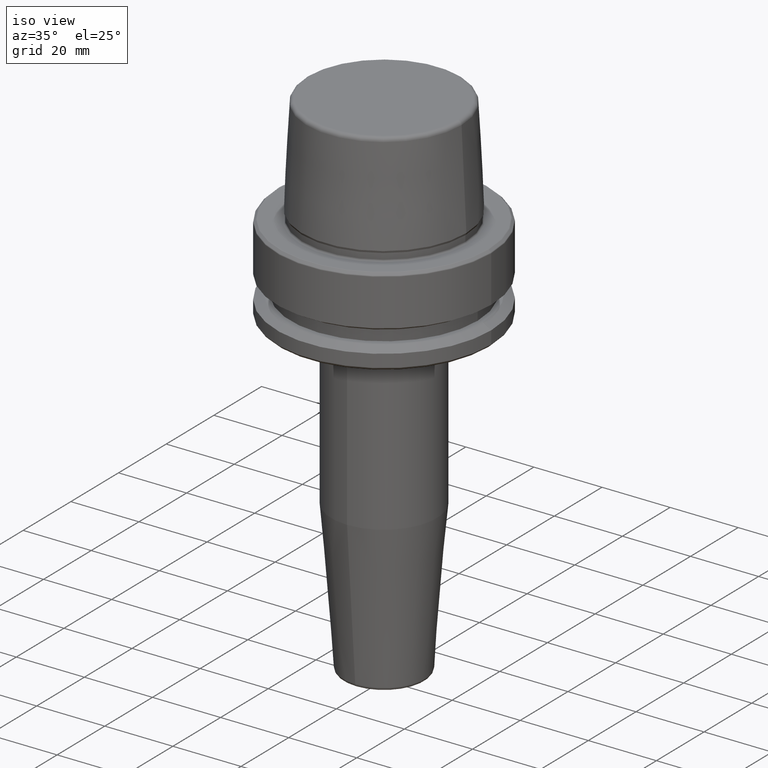
[diagram: clean part render]
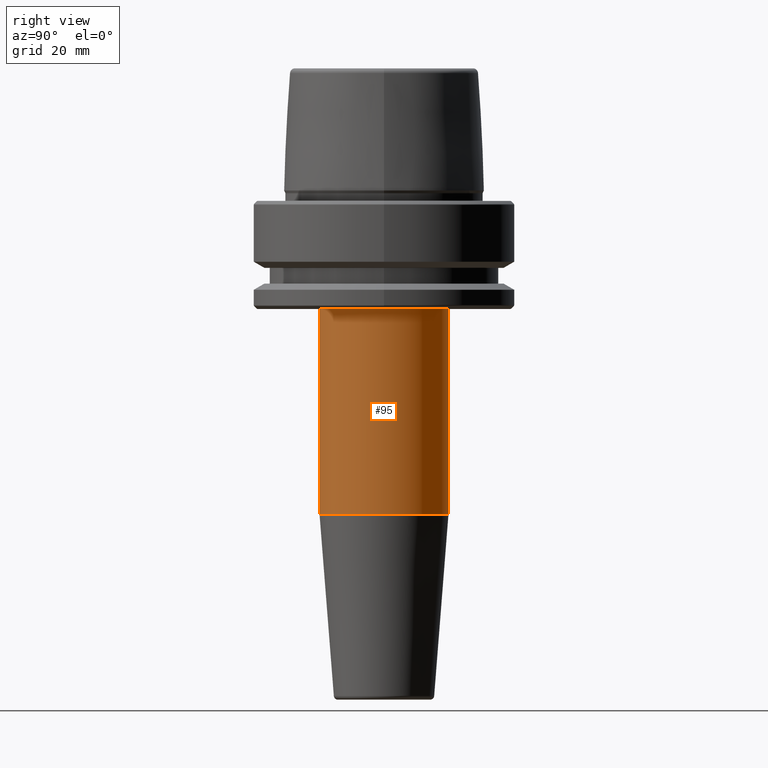
[diagram: tour spotlight — one face highlighted and labeled with its STEP entity id]
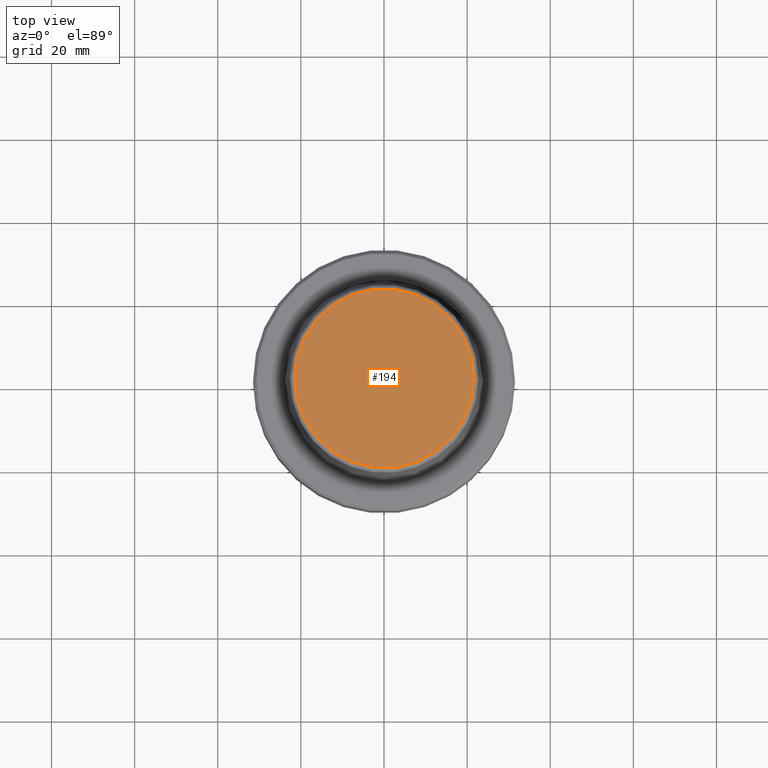
[diagram: tour spotlight — one face highlighted and labeled with its STEP entity id]
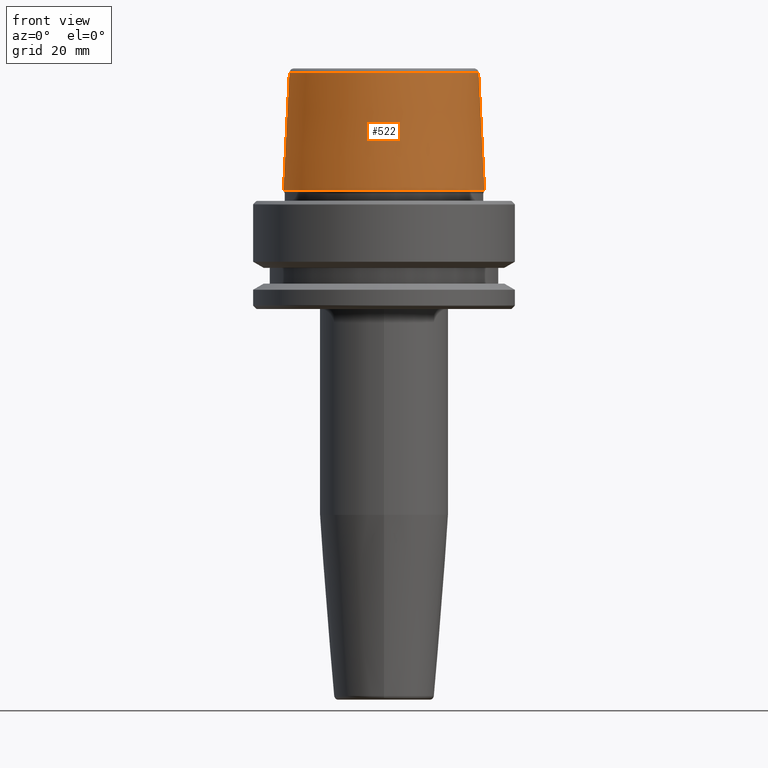
[diagram: tour spotlight — one face highlighted and labeled with its STEP entity id]
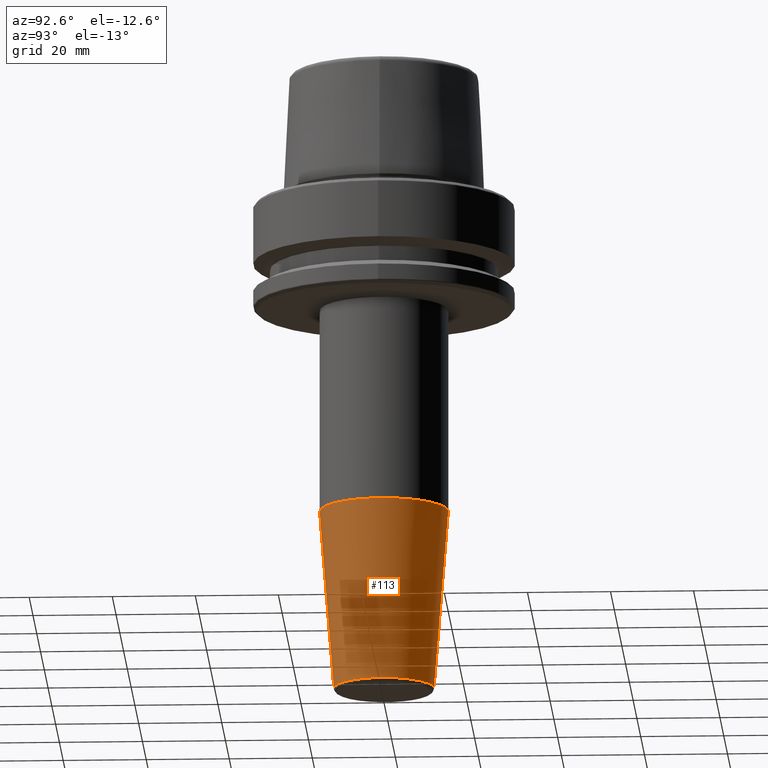
[diagram: tour spotlight — one face highlighted and labeled with its STEP entity id]
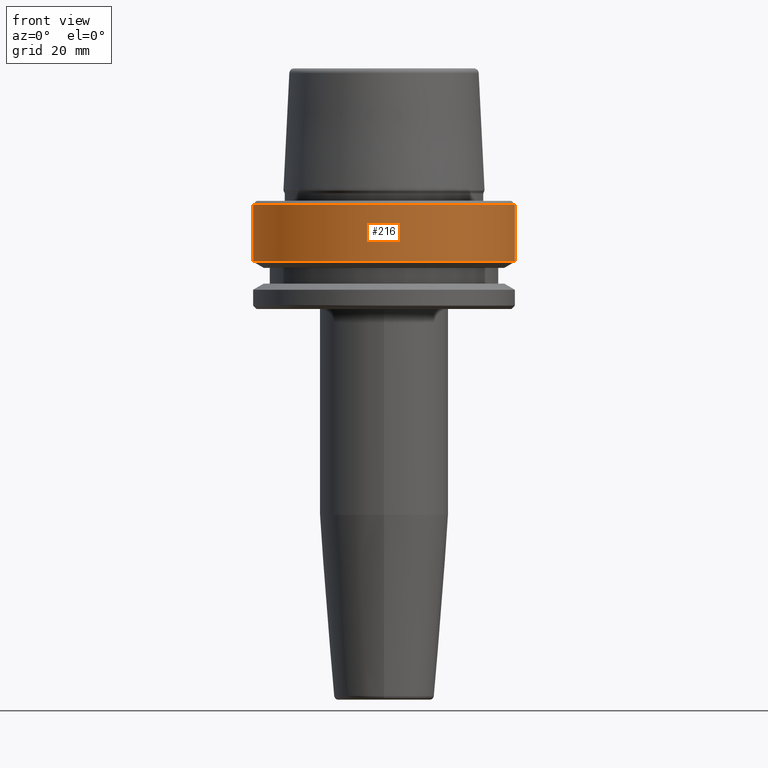
[diagram: tour spotlight — one face highlighted and labeled with its STEP entity id]
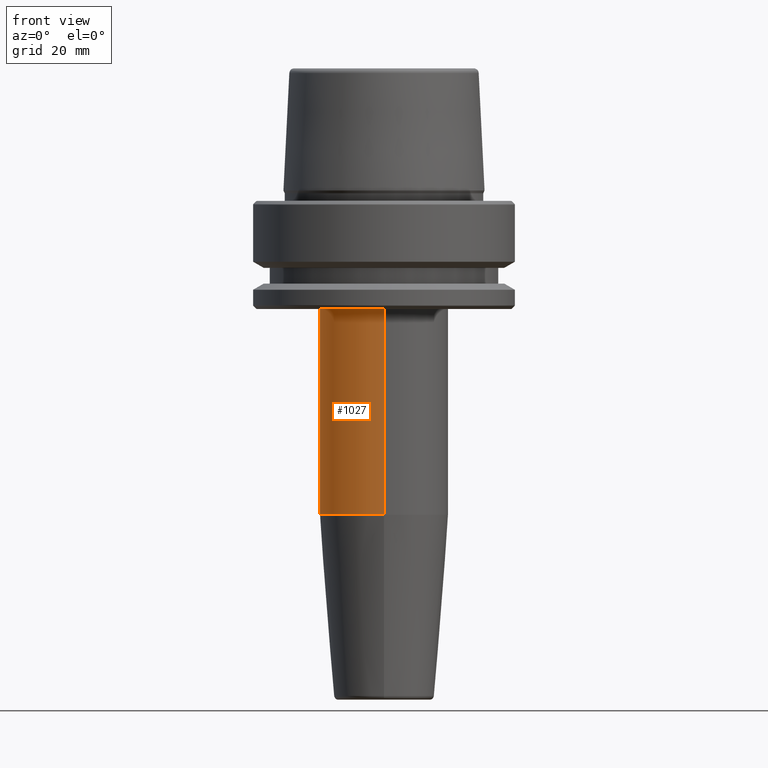
[diagram: tour spotlight — one face highlighted and labeled with its STEP entity id]
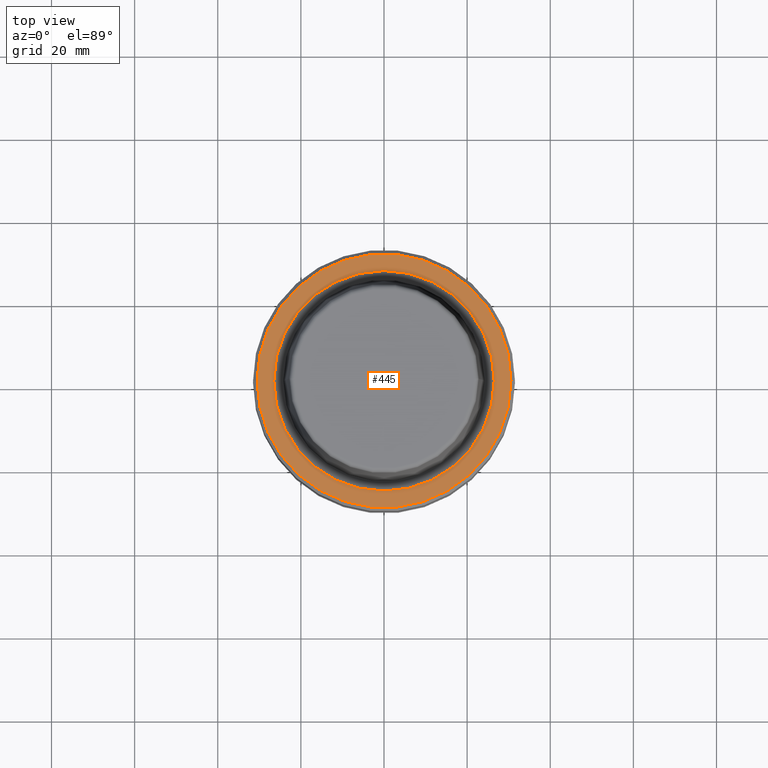
[diagram: tour spotlight — one face highlighted and labeled with its STEP entity id]
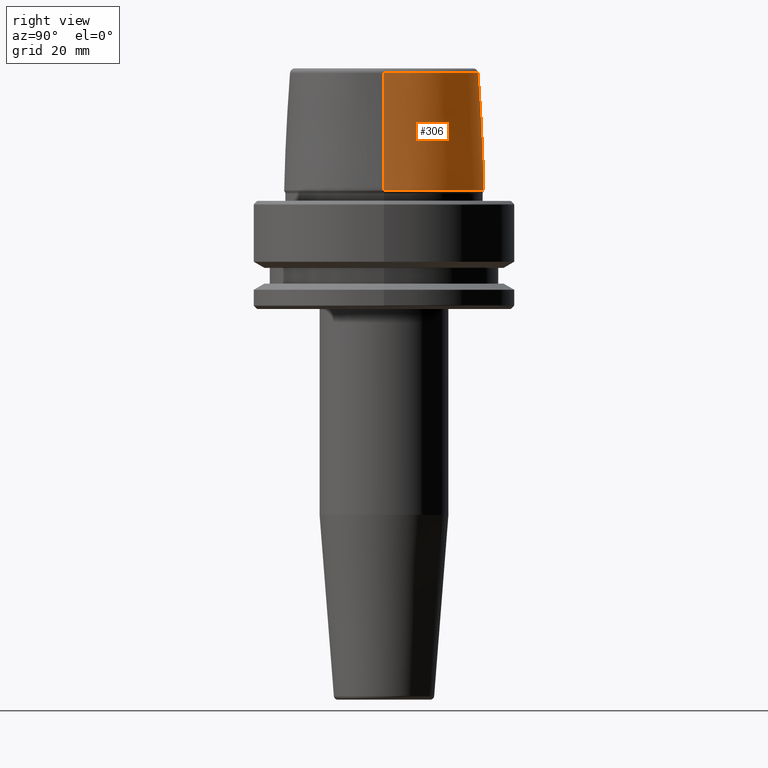
[diagram: tour spotlight — one face highlighted and labeled with its STEP entity id]
A machine part: a face-by-face anatomy tour. The part has 46 B-rep faces; the first image is the clean iso view, then the 8 largest visible faces are spotlighted one at a time (largest first), each with its STEP entity span.

Face 1 — right view, entity #95. In plain terms, the highlighted cylindrical surface (partial cylindrical patch) has radius 15.5 mm, axis along (-0, 0, -1).
Definition (entity closure, byte-faithful):
#21 = CARTESIAN_POINT ( 'NONE',  ( 1.898202538678396800E-015, 15.49999999999999600, -75.52828342338449400 ) ) ;
#33 = CARTESIAN_POINT ( 'NONE',  ( 0.0000000000000000000, 3.673940397442060800E-015, -120.0000000000000000 ) ) ;
#55 = CARTESIAN_POINT ( 'NONE',  ( 0.0000000000000000000, 15.49999999999999600, -120.0000000000000000 ) ) ;
#66 = ORIENTED_EDGE ( 'NONE', *, *, #854, .T. ) ;
#95 = ADVANCED_FACE ( 'NONE', ( #1067 ), #132, .T. ) ;
#112 = CIRCLE ( 'NONE', #831, 15.49999999999999500 ) ;
#117 = ORIENTED_EDGE ( 'NONE', *, *, #929, .F. ) ;
#126 = LINE ( 'NONE', #55, #241 ) ;
#132 = CYLINDRICAL_SURFACE ( 'NONE', #569, 15.49999999999999300 ) ;
#215 = VERTEX_POINT ( 'NONE', #21 ) ;
#241 = VECTOR ( 'NONE', #1012, 1000.000000000000000 ) ;
#279 = DIRECTION ( 'NONE',  ( 0.0000000000000000000, 1.000000000000000000, 0.0000000000000000000 ) ) ;
#330 = EDGE_LOOP ( 'NONE', ( #66, #1198, #924, #117 ) ) ;
#353 = DIRECTION ( 'NONE',  ( -0.0000000000000000000, 3.908447231321341700E-017, -1.000000000000000000 ) ) ;
#373 = CIRCLE ( 'NONE', #895, 15.49999999999999300 ) ;
#391 = CARTESIAN_POINT ( 'NONE',  ( 1.898202538678396800E-015, -15.49999999999999300, -26.00000000000001100 ) ) ;
#452 = VERTEX_POINT ( 'NONE', #885 ) ;
#569 = AXIS2_PLACEMENT_3D ( 'NONE', #33, #822, #279 ) ;
#621 = VERTEX_POINT ( 'NONE', #977 ) ;
#676 = LINE ( 'NONE', #891, #1137 ) ;
#707 = EDGE_CURVE ( 'NONE', #215, #621, #112, .T. ) ;
#711 = DIRECTION ( 'NONE',  ( -0.0000000000000000000, 3.908447231321341700E-017, -1.000000000000000000 ) ) ;
#726 = EDGE_CURVE ( 'NONE', #810, #621, #676, .T. ) ;
#809 = CARTESIAN_POINT ( 'NONE',  ( 0.0000000000000000000, 0.0000000000000000000, -26.00000000000001100 ) ) ;
#810 = VERTEX_POINT ( 'NONE', #391 ) ;
#822 = DIRECTION ( 'NONE',  ( -0.0000000000000000000, 3.908447231321341700E-017, -1.000000000000000000 ) ) ;
#831 = AXIS2_PLACEMENT_3D ( 'NONE', #1070, #353, #1136 ) ;
#854 = EDGE_CURVE ( 'NONE', #452, #810, #373, .T. ) ;
#885 = CARTESIAN_POINT ( 'NONE',  ( 0.0000000000000000000, 15.49999999999999300, -26.00000000000001100 ) ) ;
#891 = CARTESIAN_POINT ( 'NONE',  ( 1.898202538678396800E-015, -15.49999999999998900, -120.0000000000000000 ) ) ;
#895 = AXIS2_PLACEMENT_3D ( 'NONE', #809, #1189, #999 ) ;
#924 = ORIENTED_EDGE ( 'NONE', *, *, #707, .F. ) ;
#929 = EDGE_CURVE ( 'NONE', #452, #215, #126, .T. ) ;
#977 = CARTESIAN_POINT ( 'NONE',  ( 0.0000000000000000000, -15.49999999999999300, -75.52828342338449400 ) ) ;
#999 = DIRECTION ( 'NONE',  ( 1.000000000000000000, 0.0000000000000000000, 0.0000000000000000000 ) ) ;
#1012 = DIRECTION ( 'NONE',  ( -0.0000000000000000000, 3.908447231321341700E-017, -1.000000000000000000 ) ) ;
#1067 = FACE_OUTER_BOUND ( 'NONE', #330, .T. ) ;
#1070 = CARTESIAN_POINT ( 'NONE',  ( 0.0000000000000000000, 1.935786822182258300E-015, -75.52828342338449400 ) ) ;
#1136 = DIRECTION ( 'NONE',  ( 0.0000000000000000000, 1.000000000000000000, 0.0000000000000000000 ) ) ;
#1137 = VECTOR ( 'NONE', #711, 1000.000000000000000 ) ;
#1189 = DIRECTION ( 'NONE',  ( 0.0000000000000000000, 0.0000000000000000000, -1.000000000000000000 ) ) ;
#1198 = ORIENTED_EDGE ( 'NONE', *, *, #726, .T. ) ;

Face 2 — top view, entity #194. In plain terms, the highlighted planar face has unit normal (0, 0, -1).
Definition (entity closure, byte-faithful):
#68 = CARTESIAN_POINT ( 'NONE',  ( -21.58108272732117100, 2.716307157494421400E-015, 31.89999999999999900 ) ) ;
#140 = AXIS2_PLACEMENT_3D ( 'NONE', #774, #305, #467 ) ;
#171 = ORIENTED_EDGE ( 'NONE', *, *, #791, .T. ) ;
#188 = PLANE ( 'NONE',  #326 ) ;
#194 = ADVANCED_FACE ( 'NONE', ( #1080 ), #188, .F. ) ;
#219 = AXIS2_PLACEMENT_3D ( 'NONE', #1088, #821, #756 ) ;
#305 = DIRECTION ( 'NONE',  ( -0.0000000000000000000, -0.0000000000000000000, 1.000000000000000000 ) ) ;
#314 = VERTEX_POINT ( 'NONE', #68 ) ;
#326 = AXIS2_PLACEMENT_3D ( 'NONE', #626, #958, #788 ) ;
#467 = DIRECTION ( 'NONE',  ( 1.000000000000000000, 0.0000000000000000000, 0.0000000000000000000 ) ) ;
#607 = EDGE_CURVE ( 'NONE', #314, #913, #1202, .T. ) ;
#626 = CARTESIAN_POINT ( 'NONE',  ( 0.0000000000000000000, 0.0000000000000000000, 31.89999999999999900 ) ) ;
#756 = DIRECTION ( 'NONE',  ( 1.000000000000000000, 0.0000000000000000000, 0.0000000000000000000 ) ) ;
#758 = ORIENTED_EDGE ( 'NONE', *, *, #607, .T. ) ;
#774 = CARTESIAN_POINT ( 'NONE',  ( 0.0000000000000000000, 0.0000000000000000000, 31.89999999999999900 ) ) ;
#788 = DIRECTION ( 'NONE',  ( -1.000000000000000000, 0.0000000000000000000, -0.0000000000000000000 ) ) ;
#791 = EDGE_CURVE ( 'NONE', #913, #314, #953, .T. ) ;
#821 = DIRECTION ( 'NONE',  ( -0.0000000000000000000, -0.0000000000000000000, 1.000000000000000000 ) ) ;
#913 = VERTEX_POINT ( 'NONE', #1047 ) ;
#953 = CIRCLE ( 'NONE', #219, 21.58108272732117100 ) ;
#958 = DIRECTION ( 'NONE',  ( 0.0000000000000000000, 0.0000000000000000000, -1.000000000000000000 ) ) ;
#1032 = EDGE_LOOP ( 'NONE', ( #171, #758 ) ) ;
#1047 = CARTESIAN_POINT ( 'NONE',  ( 21.58108272732117100, 0.0000000000000000000, 31.89999999999999900 ) ) ;
#1080 = FACE_OUTER_BOUND ( 'NONE', #1032, .T. ) ;
#1088 = CARTESIAN_POINT ( 'NONE',  ( 0.0000000000000000000, 0.0000000000000000000, 31.89999999999999900 ) ) ;
#1202 = CIRCLE ( 'NONE', #140, 21.58108272732117100 ) ;

Face 3 — front view, entity #522. In plain terms, the highlighted conical surface has half-angle 2.868 deg.
Definition (entity closure, byte-faithful):
#10 = CARTESIAN_POINT ( 'NONE',  ( -24.19537568275369200, 0.0000000000000000000, 2.500000000000002200 ) ) ;
#46 = VECTOR ( 'NONE', #762, 1000.000000000000200 ) ;
#62 = DIRECTION ( 'NONE',  ( 1.000000000000000000, 0.0000000000000000000, 0.0000000000000000000 ) ) ;
#63 = VERTEX_POINT ( 'NONE', #871 ) ;
#64 = CIRCLE ( 'NONE', #1237, 22.77957961851797100 ) ;
#84 = CARTESIAN_POINT ( 'NONE',  ( 24.19537568275369200, 0.0000000000000000000, 2.500000000000002200 ) ) ;
#149 = LINE ( 'NONE', #10, #927 ) ;
#177 = CONICAL_SURFACE ( 'NONE', #214, 24.19537568275369200, 0.05005701257455997400 ) ;
#198 = ORIENTED_EDGE ( 'NONE', *, *, #263, .F. ) ;
#214 = AXIS2_PLACEMENT_3D ( 'NONE', #1075, #1131, #785 ) ;
#238 = EDGE_CURVE ( 'NONE', #370, #63, #149, .T. ) ;
#263 = EDGE_CURVE ( 'NONE', #370, #974, #64, .T. ) ;
#267 = CARTESIAN_POINT ( 'NONE',  ( 22.77957961851797100, 2.876386432489616700E-015, 30.76004333261571900 ) ) ;
#295 = CARTESIAN_POINT ( 'NONE',  ( -22.77957961851797100, 0.0000000000000000000, 30.76004333261571900 ) ) ;
#362 = DIRECTION ( 'NONE',  ( -0.05003611051310804400, 0.0000000000000000000, -0.9987474093306675200 ) ) ;
#370 = VERTEX_POINT ( 'NONE', #295 ) ;
#380 = LINE ( 'NONE', #750, #46 ) ;
#457 = CARTESIAN_POINT ( 'NONE',  ( 0.0000000000000000000, 0.0000000000000000000, 2.500000000000002200 ) ) ;
#483 = VERTEX_POINT ( 'NONE', #84 ) ;
#486 = DIRECTION ( 'NONE',  ( -0.0000000000000000000, -0.0000000000000000000, 1.000000000000000000 ) ) ;
#522 = ADVANCED_FACE ( 'NONE', ( #1014 ), #177, .T. ) ;
#580 = AXIS2_PLACEMENT_3D ( 'NONE', #457, #1086, #62 ) ;
#609 = ORIENTED_EDGE ( 'NONE', *, *, #238, .T. ) ;
#735 = ORIENTED_EDGE ( 'NONE', *, *, #827, .T. ) ;
#750 = CARTESIAN_POINT ( 'NONE',  ( 24.19537568275369200, 2.963078938405201500E-015, 2.500000000000002200 ) ) ;
#762 = DIRECTION ( 'NONE',  ( 0.05003611051310804400, 6.127656258166099700E-018, -0.9987474093306675200 ) ) ;
#785 = DIRECTION ( 'NONE',  ( -1.000000000000000000, 0.0000000000000000000, 0.0000000000000000000 ) ) ;
#827 = EDGE_CURVE ( 'NONE', #63, #483, #869, .T. ) ;
#863 = EDGE_LOOP ( 'NONE', ( #961, #198, #609, #735 ) ) ;
#869 = CIRCLE ( 'NONE', #580, 24.19537568275369200 ) ;
#871 = CARTESIAN_POINT ( 'NONE',  ( -24.19537568275369200, 2.963078938405201500E-015, 2.500000000000002200 ) ) ;
#908 = EDGE_CURVE ( 'NONE', #974, #483, #380, .T. ) ;
#927 = VECTOR ( 'NONE', #362, 1000.000000000000200 ) ;
#961 = ORIENTED_EDGE ( 'NONE', *, *, #908, .F. ) ;
#974 = VERTEX_POINT ( 'NONE', #267 ) ;
#1014 = FACE_OUTER_BOUND ( 'NONE', #863, .T. ) ;
#1075 = CARTESIAN_POINT ( 'NONE',  ( 0.0000000000000000000, 0.0000000000000000000, 2.500000000000002200 ) ) ;
#1086 = DIRECTION ( 'NONE',  ( -0.0000000000000000000, -0.0000000000000000000, 1.000000000000000000 ) ) ;
#1131 = DIRECTION ( 'NONE',  ( 0.0000000000000000000, 0.0000000000000000000, -1.000000000000000000 ) ) ;
#1159 = DIRECTION ( 'NONE',  ( 1.000000000000000000, 0.0000000000000000000, 0.0000000000000000000 ) ) ;
#1175 = CARTESIAN_POINT ( 'NONE',  ( 0.0000000000000000000, 0.0000000000000000000, 30.76004333261571900 ) ) ;
#1237 = AXIS2_PLACEMENT_3D ( 'NONE', #1175, #486, #1159 ) ;

Face 4 — auxiliary view, entity #113. In plain terms, the highlighted conical surface has half-angle 4.5 deg.
Definition (entity closure, byte-faithful):
#5 = VECTOR ( 'NONE', #713, 1000.000000000000000 ) ;
#21 = CARTESIAN_POINT ( 'NONE',  ( 1.898202538678396800E-015, 15.49999999999999600, -75.52828342338449400 ) ) ;
#109 = EDGE_CURVE ( 'NONE', #547, #215, #205, .T. ) ;
#112 = CIRCLE ( 'NONE', #831, 15.49999999999999500 ) ;
#113 = ADVANCED_FACE ( 'NONE', ( #369 ), #647, .T. ) ;
#178 = DIRECTION ( 'NONE',  ( 0.0000000000000000000, 1.000000000000000000, 0.0000000000000000000 ) ) ;
#205 = LINE ( 'NONE', #865, #1118 ) ;
#215 = VERTEX_POINT ( 'NONE', #21 ) ;
#353 = DIRECTION ( 'NONE',  ( -0.0000000000000000000, 3.908447231321341700E-017, -1.000000000000000000 ) ) ;
#369 = FACE_OUTER_BOUND ( 'NONE', #1115, .T. ) ;
#420 = CARTESIAN_POINT ( 'NONE',  ( 0.0000000000000000000, -15.49999999999999300, -75.52828342338449400 ) ) ;
#430 = CARTESIAN_POINT ( 'NONE',  ( 0.0000000000000000000, 1.935786822182258300E-015, -75.52828342338449400 ) ) ;
#456 = ORIENTED_EDGE ( 'NONE', *, *, #652, .F. ) ;
#484 = CARTESIAN_POINT ( 'NONE',  ( 0.0000000000000000000, 3.637922457483541700E-015, -119.0784590957278200 ) ) ;
#495 = ORIENTED_EDGE ( 'NONE', *, *, #109, .T. ) ;
#514 = DIRECTION ( 'NONE',  ( 9.608468044709221400E-018, 0.07845909572783765800, 0.9969173337331286300 ) ) ;
#527 = AXIS2_PLACEMENT_3D ( 'NONE', #484, #1253, #178 ) ;
#547 = VERTEX_POINT ( 'NONE', #1156 ) ;
#621 = VERTEX_POINT ( 'NONE', #977 ) ;
#647 = CONICAL_SURFACE ( 'NONE', #741, 15.49999999999999500, 0.07853981633973757000 ) ;
#652 = EDGE_CURVE ( 'NONE', #547, #798, #852, .T. ) ;
#656 = DIRECTION ( 'NONE',  ( 0.0000000000000000000, -1.000000000000000000, 0.0000000000000000000 ) ) ;
#707 = EDGE_CURVE ( 'NONE', #215, #621, #112, .T. ) ;
#713 = DIRECTION ( 'NONE',  ( 0.0000000000000000000, -0.07845909572783772700, 0.9969173337331285200 ) ) ;
#741 = AXIS2_PLACEMENT_3D ( 'NONE', #430, #1106, #656 ) ;
#798 = VERTEX_POINT ( 'NONE', #1120 ) ;
#811 = ORIENTED_EDGE ( 'NONE', *, *, #707, .T. ) ;
#831 = AXIS2_PLACEMENT_3D ( 'NONE', #1070, #353, #1136 ) ;
#832 = EDGE_CURVE ( 'NONE', #798, #621, #907, .T. ) ;
#852 = CIRCLE ( 'NONE', #527, 12.07252684207491800 ) ;
#865 = CARTESIAN_POINT ( 'NONE',  ( 1.898202538678396800E-015, 15.49999999999999600, -75.52828342338449400 ) ) ;
#907 = LINE ( 'NONE', #420, #5 ) ;
#977 = CARTESIAN_POINT ( 'NONE',  ( 0.0000000000000000000, -15.49999999999999300, -75.52828342338449400 ) ) ;
#1070 = CARTESIAN_POINT ( 'NONE',  ( 0.0000000000000000000, 1.935786822182258300E-015, -75.52828342338449400 ) ) ;
#1106 = DIRECTION ( 'NONE',  ( 0.0000000000000000000, -3.908447231321341700E-017, 1.000000000000000000 ) ) ;
#1109 = ORIENTED_EDGE ( 'NONE', *, *, #832, .F. ) ;
#1115 = EDGE_LOOP ( 'NONE', ( #456, #495, #811, #1109 ) ) ;
#1118 = VECTOR ( 'NONE', #514, 999.9999999999998900 ) ;
#1120 = CARTESIAN_POINT ( 'NONE',  ( 1.478458135476755100E-015, -12.07252684207491300, -119.0784590957278200 ) ) ;
#1136 = DIRECTION ( 'NONE',  ( 0.0000000000000000000, 1.000000000000000000, 0.0000000000000000000 ) ) ;
#1156 = CARTESIAN_POINT ( 'NONE',  ( 0.0000000000000000000, 12.07252684207492000, -119.0784590957278200 ) ) ;
#1253 = DIRECTION ( 'NONE',  ( -0.0000000000000000000, 3.908447231321341700E-017, -1.000000000000000000 ) ) ;

Face 5 — front view, entity #216. In plain terms, the highlighted cylindrical surface (partial cylindrical patch) has radius 31.5 mm, axis along (-0, -0, 1).
Definition (entity closure, byte-faithful):
#49 = VERTEX_POINT ( 'NONE', #179 ) ;
#74 = AXIS2_PLACEMENT_3D ( 'NONE', #412, #705, #343 ) ;
#104 = CYLINDRICAL_SURFACE ( 'NONE', #1211, 31.50000000000000000 ) ;
#135 = VECTOR ( 'NONE', #1168, 1000.000000000000000 ) ;
#173 = EDGE_CURVE ( 'NONE', #1208, #49, #1256, .T. ) ;
#179 = CARTESIAN_POINT ( 'NONE',  ( 31.50000000000000000, 0.0000000000000000000, -0.9656854249492363700 ) ) ;
#197 = AXIS2_PLACEMENT_3D ( 'NONE', #731, #902, #934 ) ;
#216 = ADVANCED_FACE ( 'NONE', ( #833 ), #104, .T. ) ;
#243 = CARTESIAN_POINT ( 'NONE',  ( -31.50000000000000000, 3.857637417314162700E-015, 78.96908074195309300 ) ) ;
#246 = CARTESIAN_POINT ( 'NONE',  ( 0.0000000000000000000, 0.0000000000000000000, 78.96908074195309300 ) ) ;
#343 = DIRECTION ( 'NONE',  ( 1.000000000000000000, 0.0000000000000000000, 0.0000000000000000000 ) ) ;
#344 = EDGE_CURVE ( 'NONE', #696, #1208, #561, .T. ) ;
#348 = ORIENTED_EDGE ( 'NONE', *, *, #344, .T. ) ;
#403 = ORIENTED_EDGE ( 'NONE', *, *, #1200, .F. ) ;
#411 = DIRECTION ( 'NONE',  ( -0.0000000000000000000, -0.0000000000000000000, 1.000000000000000000 ) ) ;
#412 = CARTESIAN_POINT ( 'NONE',  ( 0.0000000000000000000, 0.0000000000000000000, -14.62250092524070100 ) ) ;
#528 = DIRECTION ( 'NONE',  ( 1.000000000000000000, 0.0000000000000000000, 0.0000000000000000000 ) ) ;
#552 = CIRCLE ( 'NONE', #197, 31.50000000000000000 ) ;
#561 = CIRCLE ( 'NONE', #74, 31.50000000000000000 ) ;
#584 = CARTESIAN_POINT ( 'NONE',  ( -31.50000000000000000, 3.857637417314162700E-015, -14.62250092524070100 ) ) ;
#587 = LINE ( 'NONE', #243, #837 ) ;
#623 = DIRECTION ( 'NONE',  ( -0.0000000000000000000, -0.0000000000000000000, 1.000000000000000000 ) ) ;
#696 = VERTEX_POINT ( 'NONE', #584 ) ;
#705 = DIRECTION ( 'NONE',  ( -0.0000000000000000000, -0.0000000000000000000, 1.000000000000000000 ) ) ;
#731 = CARTESIAN_POINT ( 'NONE',  ( 0.0000000000000000000, 0.0000000000000000000, -0.9656854249492363700 ) ) ;
#742 = VERTEX_POINT ( 'NONE', #859 ) ;
#833 = FACE_OUTER_BOUND ( 'NONE', #1119, .T. ) ;
#837 = VECTOR ( 'NONE', #411, 1000.000000000000000 ) ;
#859 = CARTESIAN_POINT ( 'NONE',  ( -31.50000000000000000, 3.857637417314162700E-015, -0.9656854249492363700 ) ) ;
#902 = DIRECTION ( 'NONE',  ( -0.0000000000000000000, -0.0000000000000000000, 1.000000000000000000 ) ) ;
#934 = DIRECTION ( 'NONE',  ( 1.000000000000000000, 0.0000000000000000000, 0.0000000000000000000 ) ) ;
#1023 = ORIENTED_EDGE ( 'NONE', *, *, #173, .T. ) ;
#1052 = CARTESIAN_POINT ( 'NONE',  ( 31.50000000000000000, 0.0000000000000000000, -14.62250092524070100 ) ) ;
#1119 = EDGE_LOOP ( 'NONE', ( #1210, #348, #1023, #403 ) ) ;
#1138 = EDGE_CURVE ( 'NONE', #696, #742, #587, .T. ) ;
#1168 = DIRECTION ( 'NONE',  ( -0.0000000000000000000, -0.0000000000000000000, 1.000000000000000000 ) ) ;
#1200 = EDGE_CURVE ( 'NONE', #742, #49, #552, .T. ) ;
#1208 = VERTEX_POINT ( 'NONE', #1052 ) ;
#1210 = ORIENTED_EDGE ( 'NONE', *, *, #1138, .F. ) ;
#1211 = AXIS2_PLACEMENT_3D ( 'NONE', #246, #623, #528 ) ;
#1213 = CARTESIAN_POINT ( 'NONE',  ( 31.50000000000000000, 0.0000000000000000000, 78.96908074195309300 ) ) ;
#1256 = LINE ( 'NONE', #1213, #135 ) ;

Face 6 — front view, entity #1027. In plain terms, the highlighted cylindrical surface (partial cylindrical patch) has radius 15.5 mm, axis along (-0, 0, -1).
Definition (entity closure, byte-faithful):
#21 = CARTESIAN_POINT ( 'NONE',  ( 1.898202538678396800E-015, 15.49999999999999600, -75.52828342338449400 ) ) ;
#55 = CARTESIAN_POINT ( 'NONE',  ( 0.0000000000000000000, 15.49999999999999600, -120.0000000000000000 ) ) ;
#81 = EDGE_CURVE ( 'NONE', #810, #452, #329, .T. ) ;
#121 = AXIS2_PLACEMENT_3D ( 'NONE', #935, #991, #806 ) ;
#126 = LINE ( 'NONE', #55, #241 ) ;
#215 = VERTEX_POINT ( 'NONE', #21 ) ;
#241 = VECTOR ( 'NONE', #1012, 1000.000000000000000 ) ;
#251 = DIRECTION ( 'NONE',  ( 1.000000000000000000, 0.0000000000000000000, 0.0000000000000000000 ) ) ;
#307 = CARTESIAN_POINT ( 'NONE',  ( 0.0000000000000000000, 3.673940397442060800E-015, -120.0000000000000000 ) ) ;
#329 = CIRCLE ( 'NONE', #770, 15.49999999999999300 ) ;
#334 = EDGE_CURVE ( 'NONE', #621, #215, #989, .T. ) ;
#386 = DIRECTION ( 'NONE',  ( 0.0000000000000000000, 0.0000000000000000000, -1.000000000000000000 ) ) ;
#391 = CARTESIAN_POINT ( 'NONE',  ( 1.898202538678396800E-015, -15.49999999999999300, -26.00000000000001100 ) ) ;
#452 = VERTEX_POINT ( 'NONE', #885 ) ;
#611 = ORIENTED_EDGE ( 'NONE', *, *, #334, .F. ) ;
#620 = CARTESIAN_POINT ( 'NONE',  ( 0.0000000000000000000, 0.0000000000000000000, -26.00000000000001100 ) ) ;
#621 = VERTEX_POINT ( 'NONE', #977 ) ;
#667 = EDGE_LOOP ( 'NONE', ( #777, #783, #765, #611 ) ) ;
#675 = FACE_OUTER_BOUND ( 'NONE', #667, .T. ) ;
#676 = LINE ( 'NONE', #891, #1137 ) ;
#704 = AXIS2_PLACEMENT_3D ( 'NONE', #307, #1229, #754 ) ;
#711 = DIRECTION ( 'NONE',  ( -0.0000000000000000000, 3.908447231321341700E-017, -1.000000000000000000 ) ) ;
#726 = EDGE_CURVE ( 'NONE', #810, #621, #676, .T. ) ;
#754 = DIRECTION ( 'NONE',  ( 0.0000000000000000000, 1.000000000000000000, 0.0000000000000000000 ) ) ;
#765 = ORIENTED_EDGE ( 'NONE', *, *, #929, .T. ) ;
#770 = AXIS2_PLACEMENT_3D ( 'NONE', #620, #386, #251 ) ;
#777 = ORIENTED_EDGE ( 'NONE', *, *, #726, .F. ) ;
#783 = ORIENTED_EDGE ( 'NONE', *, *, #81, .T. ) ;
#806 = DIRECTION ( 'NONE',  ( 0.0000000000000000000, 1.000000000000000000, 0.0000000000000000000 ) ) ;
#810 = VERTEX_POINT ( 'NONE', #391 ) ;
#885 = CARTESIAN_POINT ( 'NONE',  ( 0.0000000000000000000, 15.49999999999999300, -26.00000000000001100 ) ) ;
#891 = CARTESIAN_POINT ( 'NONE',  ( 1.898202538678396800E-015, -15.49999999999998900, -120.0000000000000000 ) ) ;
#929 = EDGE_CURVE ( 'NONE', #452, #215, #126, .T. ) ;
#935 = CARTESIAN_POINT ( 'NONE',  ( 0.0000000000000000000, 1.935786822182258300E-015, -75.52828342338449400 ) ) ;
#977 = CARTESIAN_POINT ( 'NONE',  ( 0.0000000000000000000, -15.49999999999999300, -75.52828342338449400 ) ) ;
#989 = CIRCLE ( 'NONE', #121, 15.49999999999999500 ) ;
#991 = DIRECTION ( 'NONE',  ( -0.0000000000000000000, 3.908447231321341700E-017, -1.000000000000000000 ) ) ;
#1012 = DIRECTION ( 'NONE',  ( -0.0000000000000000000, 3.908447231321341700E-017, -1.000000000000000000 ) ) ;
#1027 = ADVANCED_FACE ( 'NONE', ( #675 ), #1122, .T. ) ;
#1122 = CYLINDRICAL_SURFACE ( 'NONE', #704, 15.49999999999999300 ) ;
#1137 = VECTOR ( 'NONE', #711, 1000.000000000000000 ) ;
#1229 = DIRECTION ( 'NONE',  ( -0.0000000000000000000, 3.908447231321341700E-017, -1.000000000000000000 ) ) ;

Face 7 — top view, entity #445. In plain terms, the highlighted planar face has unit normal (0, 0, -1).
Definition (entity closure, byte-faithful):
#53 = CARTESIAN_POINT ( 'NONE',  ( -30.53431457505076100, 3.756694181974138600E-015, 0.0000000000000000000 ) ) ;
#94 = DIRECTION ( 'NONE',  ( -1.000000000000000000, 0.0000000000000000000, -0.0000000000000000000 ) ) ;
#137 = DIRECTION ( 'NONE',  ( 1.000000000000000000, 0.0000000000000000000, 0.0000000000000000000 ) ) ;
#163 = VERTEX_POINT ( 'NONE', #812 ) ;
#187 = AXIS2_PLACEMENT_3D ( 'NONE', #393, #200, #94 ) ;
#200 = DIRECTION ( 'NONE',  ( 0.0000000000000000000, 0.0000000000000000000, -1.000000000000000000 ) ) ;
#239 = DIRECTION ( 'NONE',  ( -0.0000000000000000000, -0.0000000000000000000, 1.000000000000000000 ) ) ;
#244 = ORIENTED_EDGE ( 'NONE', *, *, #633, .T. ) ;
#260 = DIRECTION ( 'NONE',  ( 1.000000000000000000, 0.0000000000000000000, 0.0000000000000000000 ) ) ;
#268 = AXIS2_PLACEMENT_3D ( 'NONE', #636, #239, #137 ) ;
#309 = CIRCLE ( 'NONE', #268, 26.52499999999999900 ) ;
#313 = EDGE_CURVE ( 'NONE', #163, #520, #764, .T. ) ;
#333 = EDGE_CURVE ( 'NONE', #520, #163, #309, .T. ) ;
#352 = ORIENTED_EDGE ( 'NONE', *, *, #313, .F. ) ;
#393 = CARTESIAN_POINT ( 'NONE',  ( 0.0000000000000000000, 26.52499999999999900, -1.111307226797642000E-015 ) ) ;
#417 = AXIS2_PLACEMENT_3D ( 'NONE', #1250, #759, #260 ) ;
#432 = DIRECTION ( 'NONE',  ( 1.000000000000000000, 0.0000000000000000000, 0.0000000000000000000 ) ) ;
#445 = ADVANCED_FACE ( 'NONE', ( #546, #1024 ), #492, .F. ) ;
#492 = PLANE ( 'NONE',  #187 ) ;
#520 = VERTEX_POINT ( 'NONE', #550 ) ;
#545 = AXIS2_PLACEMENT_3D ( 'NONE', #1022, #1112, #432 ) ;
#546 = FACE_BOUND ( 'NONE', #1116, .T. ) ;
#550 = CARTESIAN_POINT ( 'NONE',  ( 26.52499999999999900, 0.0000000000000000000, 0.0000000000000000000 ) ) ;
#558 = DIRECTION ( 'NONE',  ( -0.0000000000000000000, -0.0000000000000000000, 1.000000000000000000 ) ) ;
#570 = CARTESIAN_POINT ( 'NONE',  ( 0.0000000000000000000, 0.0000000000000000000, 0.0000000000000000000 ) ) ;
#593 = VERTEX_POINT ( 'NONE', #53 ) ;
#625 = ORIENTED_EDGE ( 'NONE', *, *, #333, .F. ) ;
#633 = EDGE_CURVE ( 'NONE', #896, #593, #1134, .T. ) ;
#636 = CARTESIAN_POINT ( 'NONE',  ( 0.0000000000000000000, 0.0000000000000000000, 0.0000000000000000000 ) ) ;
#759 = DIRECTION ( 'NONE',  ( -0.0000000000000000000, -0.0000000000000000000, 1.000000000000000000 ) ) ;
#764 = CIRCLE ( 'NONE', #545, 26.52499999999999900 ) ;
#786 = CIRCLE ( 'NONE', #860, 30.53431457505076100 ) ;
#794 = DIRECTION ( 'NONE',  ( 1.000000000000000000, 0.0000000000000000000, 0.0000000000000000000 ) ) ;
#812 = CARTESIAN_POINT ( 'NONE',  ( -26.52499999999999900, 3.248375634738354300E-015, 0.0000000000000000000 ) ) ;
#860 = AXIS2_PLACEMENT_3D ( 'NONE', #570, #558, #794 ) ;
#896 = VERTEX_POINT ( 'NONE', #1191 ) ;
#1022 = CARTESIAN_POINT ( 'NONE',  ( 0.0000000000000000000, 0.0000000000000000000, 0.0000000000000000000 ) ) ;
#1024 = FACE_OUTER_BOUND ( 'NONE', #1162, .T. ) ;
#1112 = DIRECTION ( 'NONE',  ( -0.0000000000000000000, -0.0000000000000000000, 1.000000000000000000 ) ) ;
#1116 = EDGE_LOOP ( 'NONE', ( #625, #352 ) ) ;
#1134 = CIRCLE ( 'NONE', #417, 30.53431457505076100 ) ;
#1162 = EDGE_LOOP ( 'NONE', ( #244, #1178 ) ) ;
#1178 = ORIENTED_EDGE ( 'NONE', *, *, #1245, .T. ) ;
#1191 = CARTESIAN_POINT ( 'NONE',  ( 30.53431457505076100, 0.0000000000000000000, 0.0000000000000000000 ) ) ;
#1245 = EDGE_CURVE ( 'NONE', #593, #896, #786, .T. ) ;
#1250 = CARTESIAN_POINT ( 'NONE',  ( 0.0000000000000000000, 0.0000000000000000000, 0.0000000000000000000 ) ) ;

Face 8 — right view, entity #306. In plain terms, the highlighted conical surface has half-angle 2.868 deg.
Definition (entity closure, byte-faithful):
#10 = CARTESIAN_POINT ( 'NONE',  ( -24.19537568275369200, 0.0000000000000000000, 2.500000000000002200 ) ) ;
#44 = CARTESIAN_POINT ( 'NONE',  ( 0.0000000000000000000, 0.0000000000000000000, 2.500000000000002200 ) ) ;
#46 = VECTOR ( 'NONE', #762, 1000.000000000000200 ) ;
#50 = DIRECTION ( 'NONE',  ( 1.000000000000000000, 0.0000000000000000000, 0.0000000000000000000 ) ) ;
#63 = VERTEX_POINT ( 'NONE', #871 ) ;
#84 = CARTESIAN_POINT ( 'NONE',  ( 24.19537568275369200, 0.0000000000000000000, 2.500000000000002200 ) ) ;
#149 = LINE ( 'NONE', #10, #927 ) ;
#151 = CONICAL_SURFACE ( 'NONE', #629, 24.19537568275369200, 0.05005701257455997400 ) ;
#184 = ORIENTED_EDGE ( 'NONE', *, *, #781, .F. ) ;
#192 = AXIS2_PLACEMENT_3D ( 'NONE', #567, #1243, #468 ) ;
#204 = ORIENTED_EDGE ( 'NONE', *, *, #918, .T. ) ;
#238 = EDGE_CURVE ( 'NONE', #370, #63, #149, .T. ) ;
#267 = CARTESIAN_POINT ( 'NONE',  ( 22.77957961851797100, 2.876386432489616700E-015, 30.76004333261571900 ) ) ;
#276 = ORIENTED_EDGE ( 'NONE', *, *, #238, .F. ) ;
#295 = CARTESIAN_POINT ( 'NONE',  ( -22.77957961851797100, 0.0000000000000000000, 30.76004333261571900 ) ) ;
#306 = ADVANCED_FACE ( 'NONE', ( #408 ), #151, .T. ) ;
#362 = DIRECTION ( 'NONE',  ( -0.05003611051310804400, 0.0000000000000000000, -0.9987474093306675200 ) ) ;
#370 = VERTEX_POINT ( 'NONE', #295 ) ;
#380 = LINE ( 'NONE', #750, #46 ) ;
#408 = FACE_OUTER_BOUND ( 'NONE', #861, .T. ) ;
#468 = DIRECTION ( 'NONE',  ( 1.000000000000000000, 0.0000000000000000000, 0.0000000000000000000 ) ) ;
#476 = CIRCLE ( 'NONE', #773, 22.77957961851797100 ) ;
#483 = VERTEX_POINT ( 'NONE', #84 ) ;
#567 = CARTESIAN_POINT ( 'NONE',  ( 0.0000000000000000000, 0.0000000000000000000, 2.500000000000002200 ) ) ;
#629 = AXIS2_PLACEMENT_3D ( 'NONE', #44, #815, #1087 ) ;
#630 = ORIENTED_EDGE ( 'NONE', *, *, #908, .T. ) ;
#718 = DIRECTION ( 'NONE',  ( -0.0000000000000000000, -0.0000000000000000000, 1.000000000000000000 ) ) ;
#750 = CARTESIAN_POINT ( 'NONE',  ( 24.19537568275369200, 2.963078938405201500E-015, 2.500000000000002200 ) ) ;
#762 = DIRECTION ( 'NONE',  ( 0.05003611051310804400, 6.127656258166099700E-018, -0.9987474093306675200 ) ) ;
#773 = AXIS2_PLACEMENT_3D ( 'NONE', #1007, #718, #50 ) ;
#781 = EDGE_CURVE ( 'NONE', #974, #370, #476, .T. ) ;
#815 = DIRECTION ( 'NONE',  ( 0.0000000000000000000, 0.0000000000000000000, -1.000000000000000000 ) ) ;
#861 = EDGE_LOOP ( 'NONE', ( #184, #630, #204, #276 ) ) ;
#871 = CARTESIAN_POINT ( 'NONE',  ( -24.19537568275369200, 2.963078938405201500E-015, 2.500000000000002200 ) ) ;
#908 = EDGE_CURVE ( 'NONE', #974, #483, #380, .T. ) ;
#918 = EDGE_CURVE ( 'NONE', #483, #63, #948, .T. ) ;
#927 = VECTOR ( 'NONE', #362, 1000.000000000000200 ) ;
#948 = CIRCLE ( 'NONE', #192, 24.19537568275369200 ) ;
#974 = VERTEX_POINT ( 'NONE', #267 ) ;
#1007 = CARTESIAN_POINT ( 'NONE',  ( 0.0000000000000000000, 0.0000000000000000000, 30.76004333261571900 ) ) ;
#1087 = DIRECTION ( 'NONE',  ( -1.000000000000000000, 0.0000000000000000000, 0.0000000000000000000 ) ) ;
#1243 = DIRECTION ( 'NONE',  ( -0.0000000000000000000, -0.0000000000000000000, 1.000000000000000000 ) ) ;